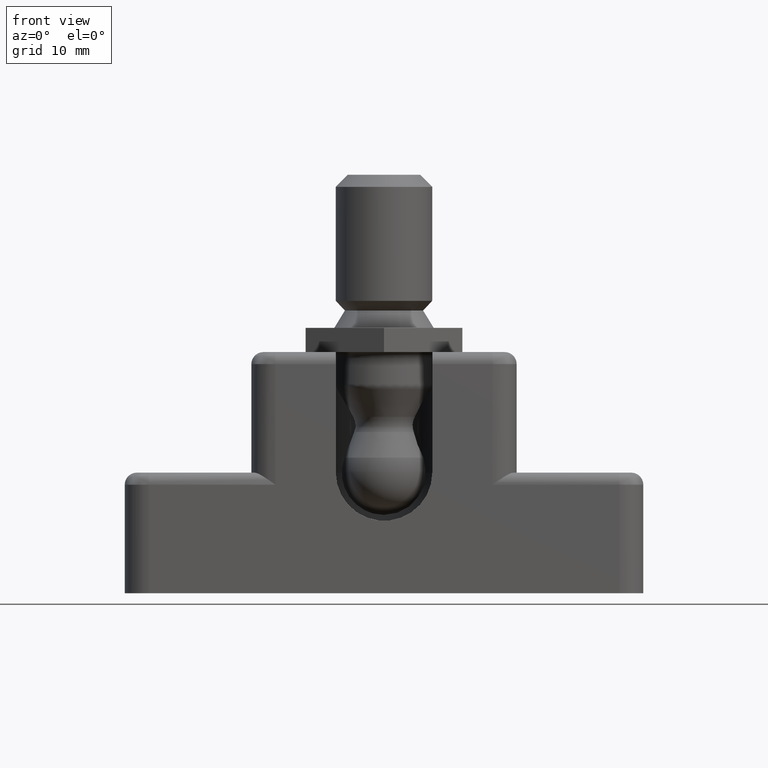
[diagram: clean part render]
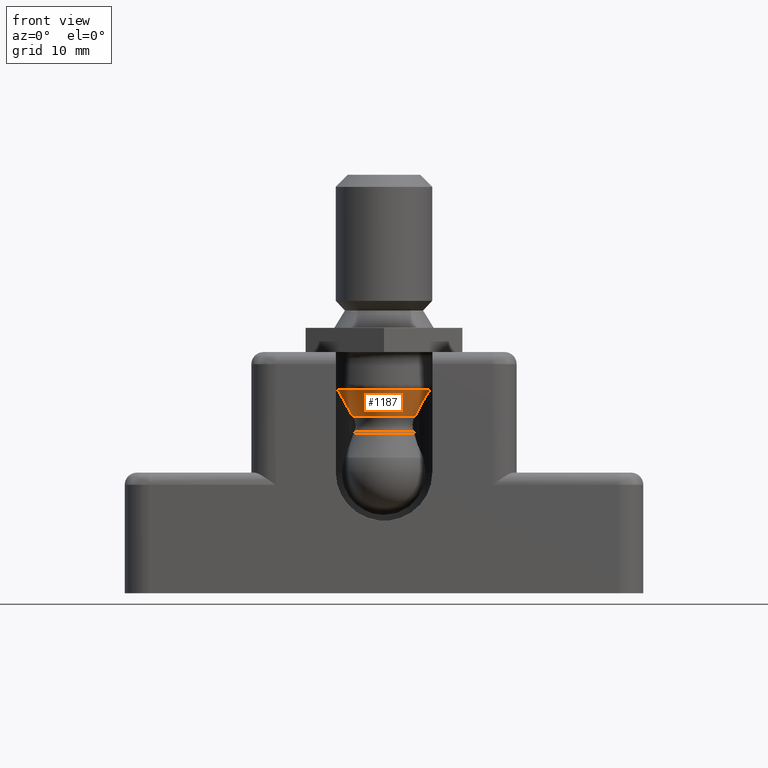
[diagram: same view with one face highlighted and labeled with its STEP entity id]
A machine part, front view. The second image highlights one B-rep face of the part: STEP entity #1187.
In plain terms, the highlighted conical surface has half-angle 29.697 deg.
Its self-contained STEP definition (entity closure, byte-faithful):
#56=B_SPLINE_CURVE_WITH_KNOTS('',3,(#1827,#1828,#1829,#1830,#1831,#1832,
#1833,#1834,#1835,#1836,#1837,#1838,#1839,#1840,#1841,#1842,#1843,#1844),
 .UNSPECIFIED.,.F.,.F.,(4,2,2,2,2,2,2,2,4),(1.47475695391112,1.62253187526257,
1.77219527500032,1.88629899412374,2.00040271324715,2.11450643237057,2.22861015149399,
2.37827355123173,2.52604847258319),.UNSPECIFIED.);
#96=LINE('',#1845,#193);
#193=VECTOR('',#1447,3.21839788);
#289=CONICAL_SURFACE('',#1290,3.21839788,0.518315103087244);
#297=FACE_OUTER_BOUND('',#366,.T.);
#366=EDGE_LOOP('',(#822,#823,#824,#825,#826,#827));
#434=CIRCLE('',#1274,2.56814062);
#442=CIRCLE('',#1287,3.86865514);
#443=CIRCLE('',#1288,3.86865514);
#505=VERTEX_POINT('',#1770);
#512=VERTEX_POINT('',#1794);
#513=VERTEX_POINT('',#1795);
#514=VERTEX_POINT('',#1797);
#617=EDGE_CURVE('',#505,#505,#434,.T.);
#629=EDGE_CURVE('',#512,#513,#442,.T.);
#630=EDGE_CURVE('',#513,#514,#443,.T.);
#634=EDGE_CURVE('',#512,#514,#56,.T.);
#635=EDGE_CURVE('',#513,#505,#96,.T.);
#822=ORIENTED_EDGE('',*,*,#629,.F.);
#823=ORIENTED_EDGE('',*,*,#634,.T.);
#824=ORIENTED_EDGE('',*,*,#630,.F.);
#825=ORIENTED_EDGE('',*,*,#635,.T.);
#826=ORIENTED_EDGE('',*,*,#617,.T.);
#827=ORIENTED_EDGE('',*,*,#635,.F.);
#1187=ADVANCED_FACE('',(#297),#289,.T.);
#1274=AXIS2_PLACEMENT_3D('',#1771,#1409,#1410);
#1287=AXIS2_PLACEMENT_3D('',#1796,#1439,#1440);
#1288=AXIS2_PLACEMENT_3D('',#1798,#1441,#1442);
#1290=AXIS2_PLACEMENT_3D('',#1826,#1445,#1446);
#1409=DIRECTION('center_axis',(0.,0.,1.));
#1410=DIRECTION('ref_axis',(1.,0.,0.));
#1439=DIRECTION('center_axis',(0.,0.,1.));
#1440=DIRECTION('ref_axis',(1.,0.,0.));
#1441=DIRECTION('center_axis',(0.,0.,1.));
#1442=DIRECTION('ref_axis',(1.,0.,0.));
#1445=DIRECTION('center_axis',(0.,0.,1.));
#1446=DIRECTION('ref_axis',(1.,0.,0.));
#1447=DIRECTION('',(0.495417247388114,6.06711146256246E-17,-0.868655139275872));
#1770=CARTESIAN_POINT('',(-2.56814062,11.,14.63100778));
#1771=CARTESIAN_POINT('Origin',(0.,11.,14.63100778));
#1794=CARTESIAN_POINT('',(-3.86861886280554,11.0167537038758,16.9113051));
#1795=CARTESIAN_POINT('',(-3.86865514,11.,16.9113051));
#1796=CARTESIAN_POINT('Origin',(0.,11.,16.9113051));
#1797=CARTESIAN_POINT('',(3.86861886280554,11.0167537038758,16.9113051));
#1798=CARTESIAN_POINT('Origin',(0.,11.,16.9113051));
#1826=CARTESIAN_POINT('Origin',(0.,11.,15.77115644));
#1827=CARTESIAN_POINT('Ctrl Pts',(-3.86861886280554,11.0167537038758,16.9113051));
#1828=CARTESIAN_POINT('Ctrl Pts',(-3.75372091838318,11.4539258070071,16.7131666803016));
#1829=CARTESIAN_POINT('Ctrl Pts',(-3.55189548678128,11.9032745216313,16.4999512082969));
#1830=CARTESIAN_POINT('Ctrl Pts',(-2.98616240149927,12.7069139778335,16.0997155802324));
#1831=CARTESIAN_POINT('Ctrl Pts',(-2.62001051071402,13.0599848557575,15.9133948782701));
#1832=CARTESIAN_POINT('Ctrl Pts',(-1.92047019157753,13.5276478053734,15.6585045606033));
#1833=CARTESIAN_POINT('Ctrl Pts',(-1.55872825710411,13.7057435800392,15.5579025251771));
#1834=CARTESIAN_POINT('Ctrl Pts',(-0.788778971979438,13.9420802809948,15.4223988464344));
#1835=CARTESIAN_POINT('Ctrl Pts',(-0.380345730411392,14.,15.3882217685304));
#1836=CARTESIAN_POINT('Ctrl Pts',(0.38034573041139,14.,15.3882217685304));
#1837=CARTESIAN_POINT('Ctrl Pts',(0.788778971979435,13.9420802809948,15.4223988464344));
#1838=CARTESIAN_POINT('Ctrl Pts',(1.55872825710411,13.7057435800392,15.5579025251771));
#1839=CARTESIAN_POINT('Ctrl Pts',(1.92047019157753,13.5276478053734,15.6585045606033));
#1840=CARTESIAN_POINT('Ctrl Pts',(2.62001051071402,13.0599848557575,15.9133948782701));
#1841=CARTESIAN_POINT('Ctrl Pts',(2.98616240149927,12.7069139778335,16.0997155802324));
#1842=CARTESIAN_POINT('Ctrl Pts',(3.55189548678128,11.9032745216313,16.4999512082969));
#1843=CARTESIAN_POINT('Ctrl Pts',(3.75372091838318,11.4539258070071,16.7131666803016));
#1844=CARTESIAN_POINT('Ctrl Pts',(3.86861886280554,11.0167537038758,16.9113051));
#1845=CARTESIAN_POINT('',(-3.21839788,11.,15.77115644));